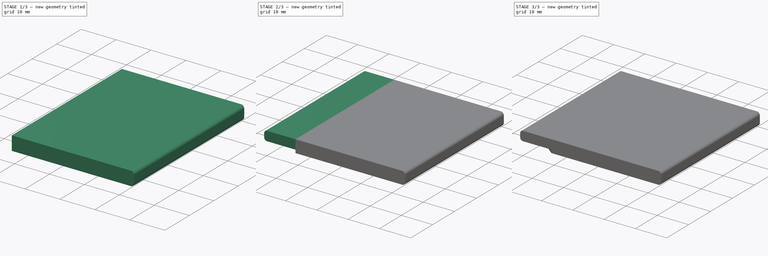
[diagram: build sequence overview — one tinted view per stage of 3, left to right]
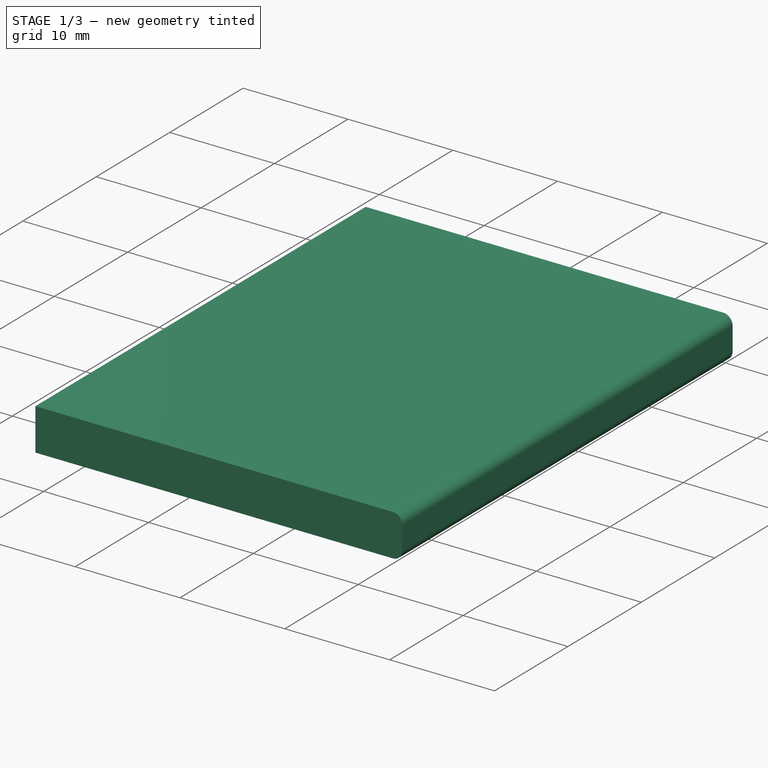
[diagram: stage 1 of 3 — iso view after this stage's code; geometry added in this stage tinted green]
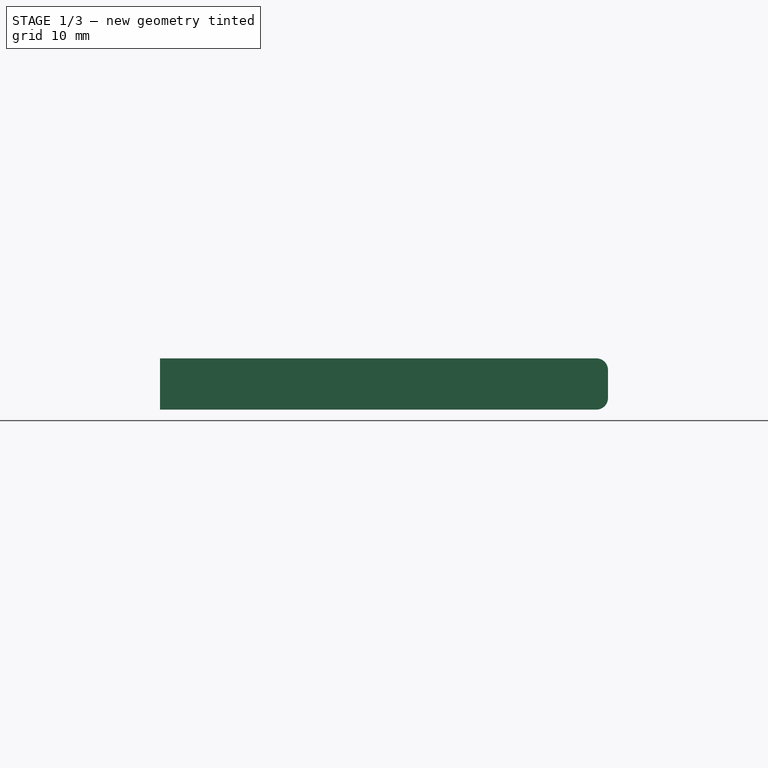
[diagram: stage 1 of 3 — front view after this stage's code; geometry added in this stage tinted green]
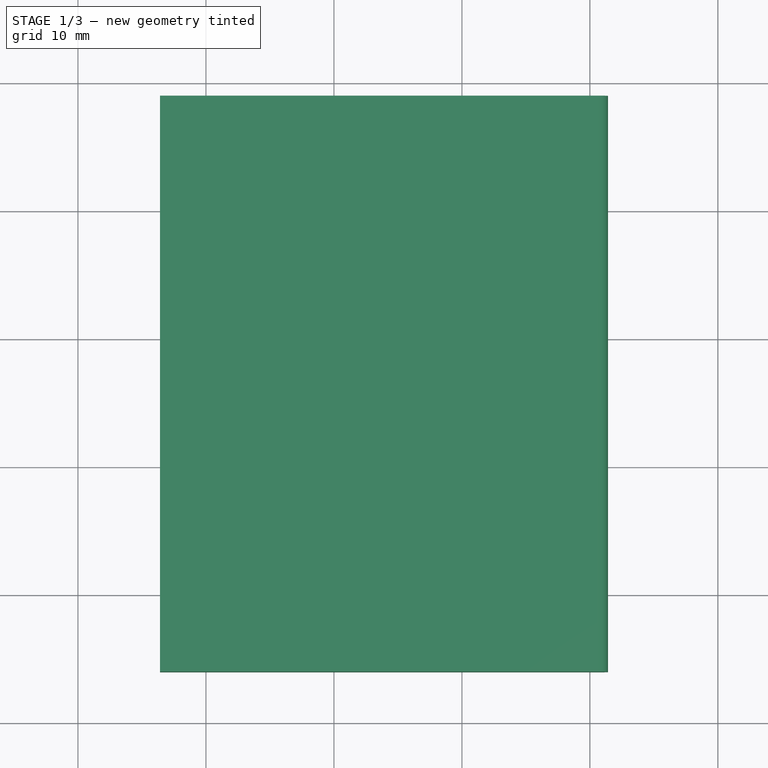
[diagram: stage 1 of 3 — top view after this stage's code; geometry added in this stage tinted green]
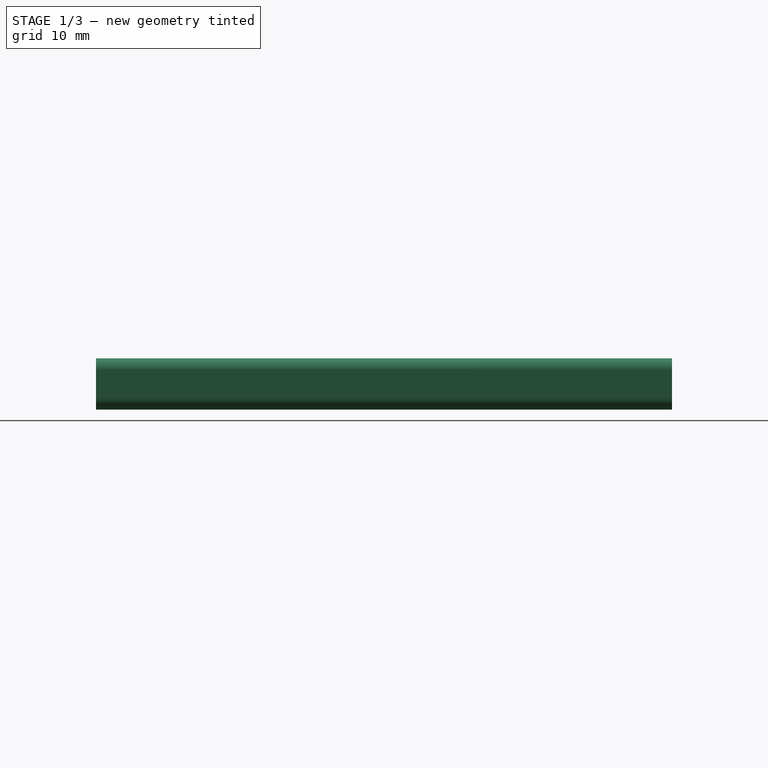
[diagram: stage 1 of 3 — right view after this stage's code; geometry added in this stage tinted green]
FCSTD DOCUMENT  (FreeCAD 1.0R39319 (Git))
Label: door_handle
License: All rights reserved
LicenseURL: http://en.wikipedia.org/wiki/All_rights_reserved
objects: Sketcher::SketchObject×3, Part::Extrusion×3, Part::Fillet×2, Part::MultiFuse×1, Part::Feature×1
note: 13 computed .brp shape members not serialized (recipe doc carries the construction recipe); baked Part::Feature solids carry a one-line shape summary decoded from their .brp

FEATURE [Sketcher::SketchObject] Sketch
  ArcFitTolerance = 0
  FullyConstrained = false
  MakeInternals = false
  sketch-geometry (5):
    g0: LineSegment StartX=-13.5883 StartY=18.9901 StartZ=0 EndX=21.4117 EndY=18.9901 EndZ=0
    g1: LineSegment StartX=21.4117 StartY=18.9901 StartZ=0 EndX=21.4117 EndY=-26.0099 EndZ=0
    g2: LineSegment StartX=21.4117 StartY=-26.0099 StartZ=0 EndX=-13.5883 EndY=-26.0099 EndZ=0
    g3: LineSegment StartX=-13.5883 StartY=-26.0099 StartZ=0 EndX=-13.5883 EndY=18.9901 EndZ=0
    g4: GeomPoint [constr] X=-8.5883 Y=-26.0099 Z=0
  constraints (12):
    c: Coincident(g0,g1)
    c: Coincident(g1,g2)
    c: Coincident(g2,g3)
    c: Coincident(g3,g0)
    c: Horizontal(g0)
    c: Horizontal(g2)
    c: Vertical(g1)
    c: Vertical(g3)
    c: DistanceY(g1,g1) = 45
    c: DistanceX(g0,g0) = 35
    c: PointOnObject(g4,g2)
    c: DistanceX(g2,g4) = 5
FEATURE [Part::Extrusion] Extrude
  Base = -> Sketch
  Dir = (0,0,1)
  DirMode = 2
  FaceMakerClass = Part::FaceMakerBullseye
  FaceMakerMode = 3
  LengthFwd = 4
  LengthRev = 0
  Solid = true
  Symmetric = false
FEATURE [Part::Fillet] Fillet001
  Base = -> Extrude
  EdgeLinks = -> Extrude [Edge6,Edge7]
  Edges = 2 edges r=0.9: [Edge6,Edge7]
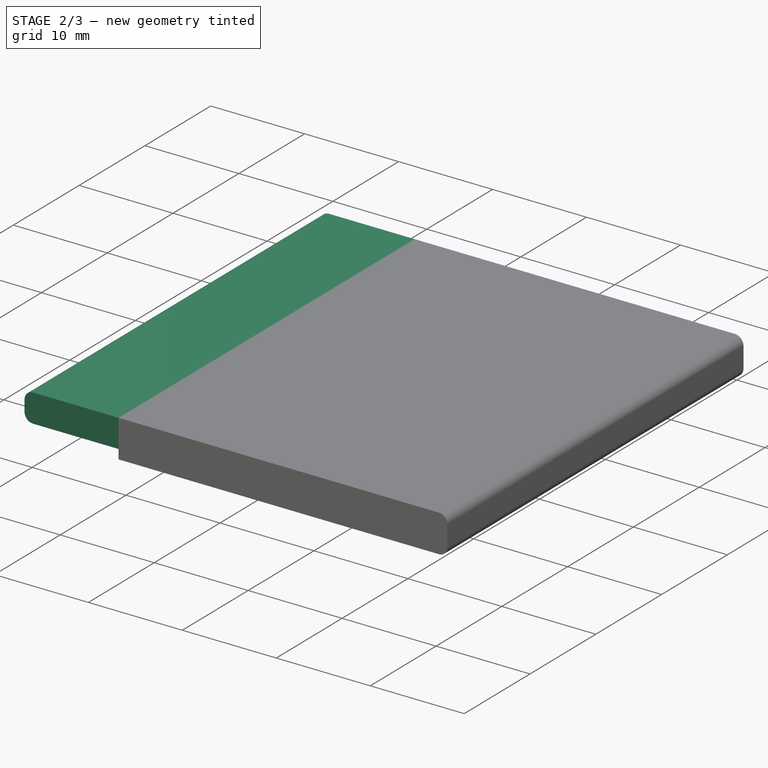
[diagram: stage 2 of 3 — iso view after this stage's code; geometry added in this stage tinted green]
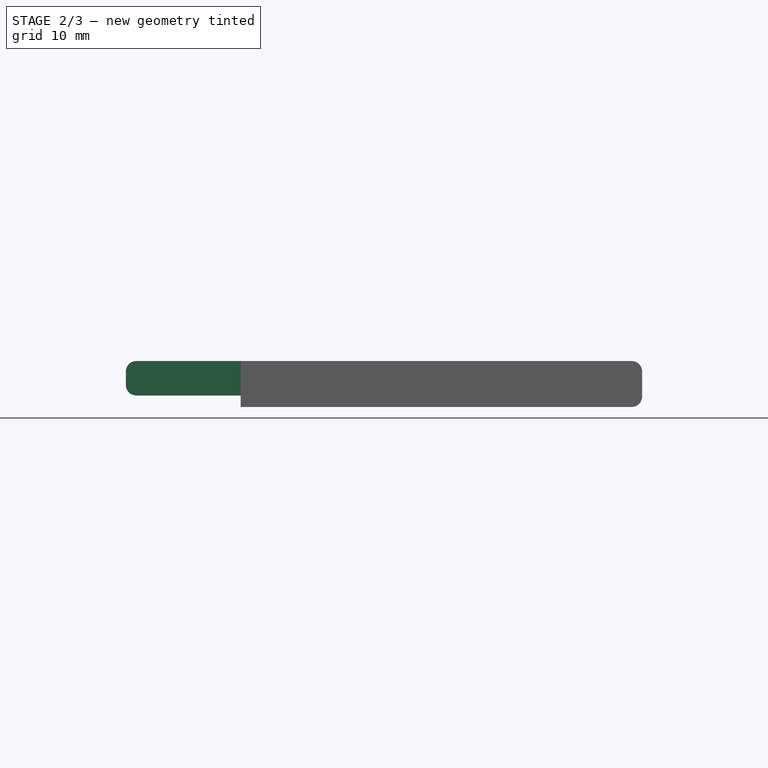
[diagram: stage 2 of 3 — front view after this stage's code; geometry added in this stage tinted green]
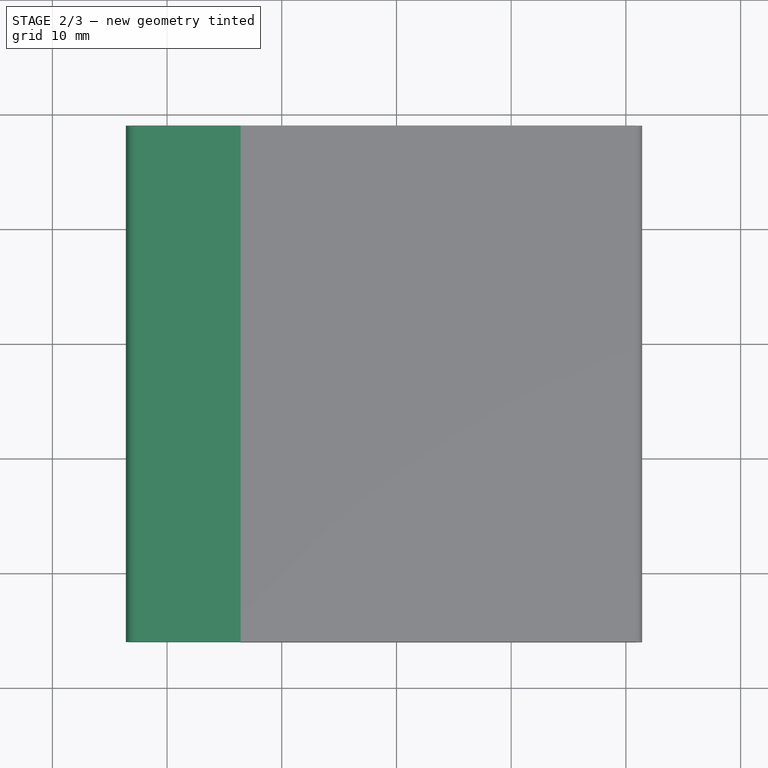
[diagram: stage 2 of 3 — top view after this stage's code; geometry added in this stage tinted green]
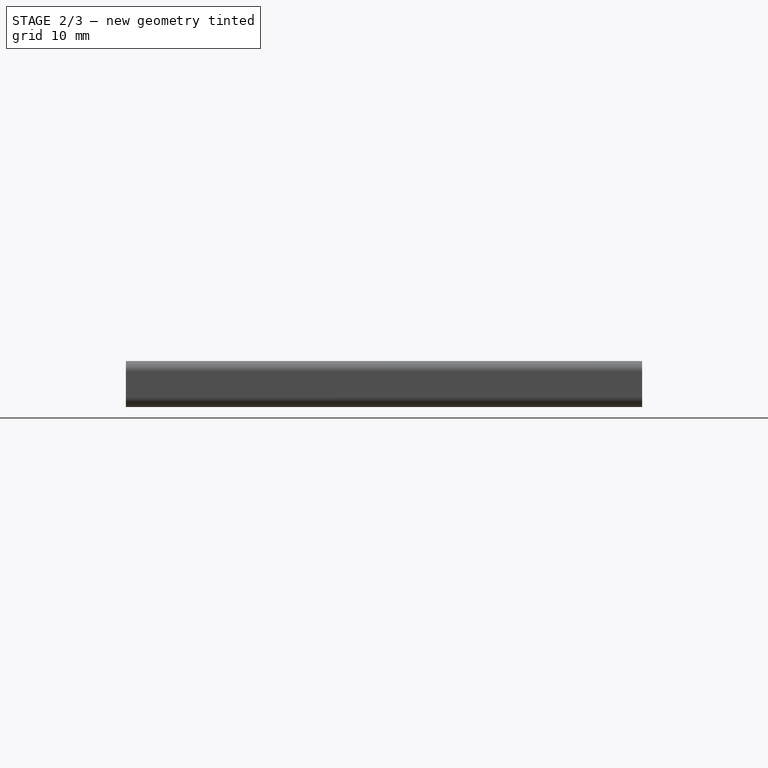
[diagram: stage 2 of 3 — right view after this stage's code; geometry added in this stage tinted green]
FEATURE [Sketcher::SketchObject] Sketch001
  ArcFitTolerance = 0
  AttachmentSupport = -> [Extrude]
  FullyConstrained = false
  MakeInternals = false
  MapMode = 1
  Placement = pos=(-13.5883,18.9901,4) rot=(0,0,1;0rad)
  sketch-geometry (5):
    g0: LineSegment StartX=0 StartY=0 StartZ=0 EndX=-10 EndY=0 EndZ=0
    g1: LineSegment StartX=-10 StartY=0 StartZ=0 EndX=-10 EndY=-45 EndZ=0
    g2: LineSegment StartX=-10 StartY=-45 StartZ=0 EndX=0 EndY=-45 EndZ=0
    g3: LineSegment StartX=0 StartY=-45 StartZ=0 EndX=0 EndY=0 EndZ=0
    g4: GeomPoint [constr] X=-5 Y=-45 Z=0
  constraints (12):
    c: Coincident(g0,g1)
    c: Coincident(g1,g2)
    c: Coincident(g2,g3)
    c: Coincident(g3,g0)
    c: Horizontal(g0)
    c: Horizontal(g2)
    c: Vertical(g1)
    c: Vertical(g3)
    c: DistanceY(g1,g1) = 45
    c: DistanceX(g0,g0) = 10
    c: PointOnObject(g4,g2)
    c: DistanceX(g4,g2) = 5
FEATURE [Part::Extrusion] Extrude001
  Base = -> Sketch001
  Dir = (0,0,1)
  DirMode = 2
  FaceMakerClass = Part::FaceMakerBullseye
  FaceMakerMode = 3
  LengthFwd = 3
  LengthRev = 0
  Solid = true
  Symmetric = false
FEATURE [Part::Fillet] Fillet
  Base = -> Extrude001
  EdgeLinks = -> Extrude001 [Edge6,Edge7]
  Edges = 2 edges r=0.9: [Edge6,Edge7]
  Placement = pos=(0,0,-3) rot=(0,0,1;0rad)
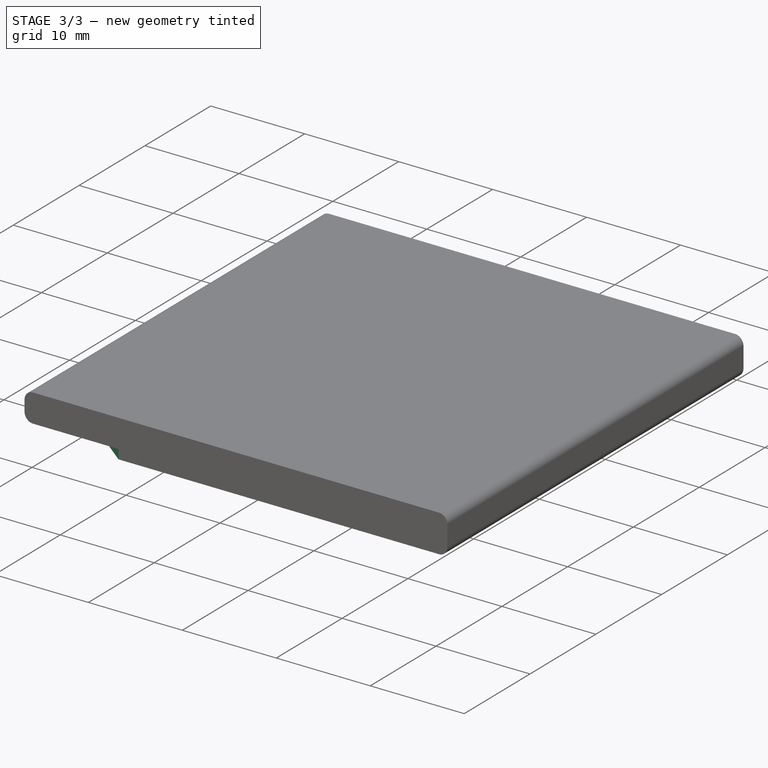
[diagram: stage 3 of 3 — iso view after this stage's code; geometry added in this stage tinted green]
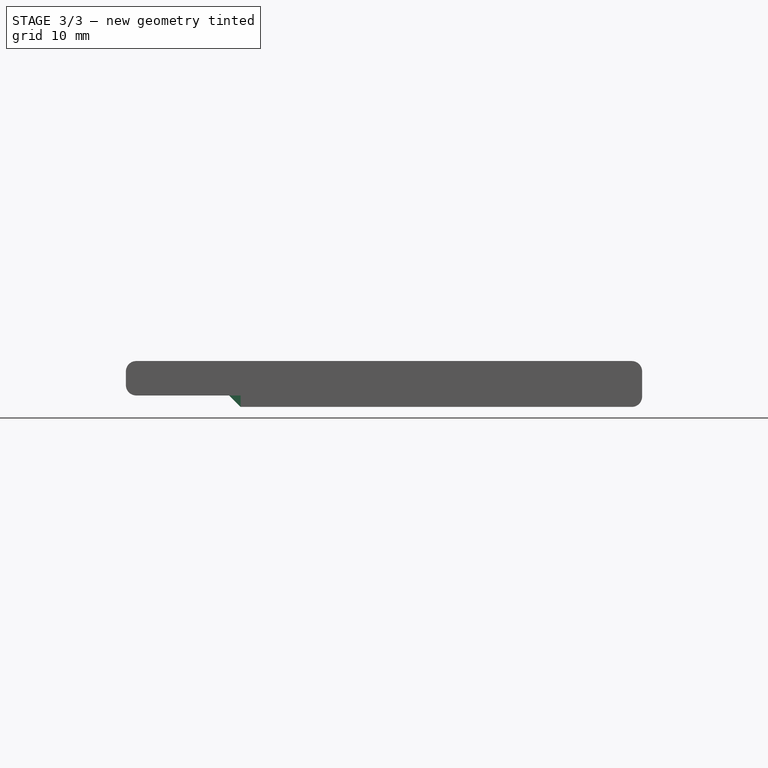
[diagram: stage 3 of 3 — front view after this stage's code; geometry added in this stage tinted green]
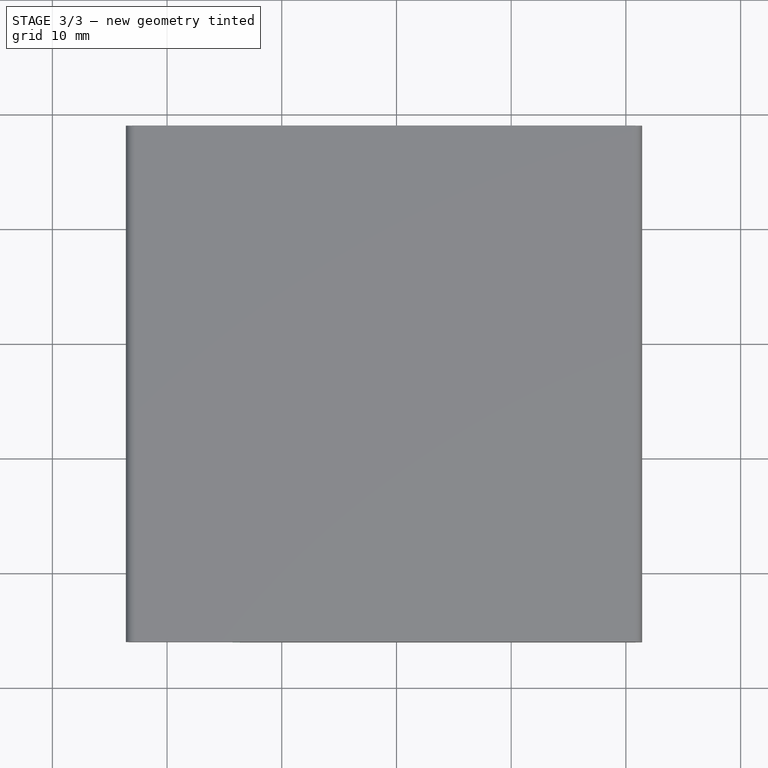
[diagram: stage 3 of 3 — top view after this stage's code; geometry added in this stage tinted green]
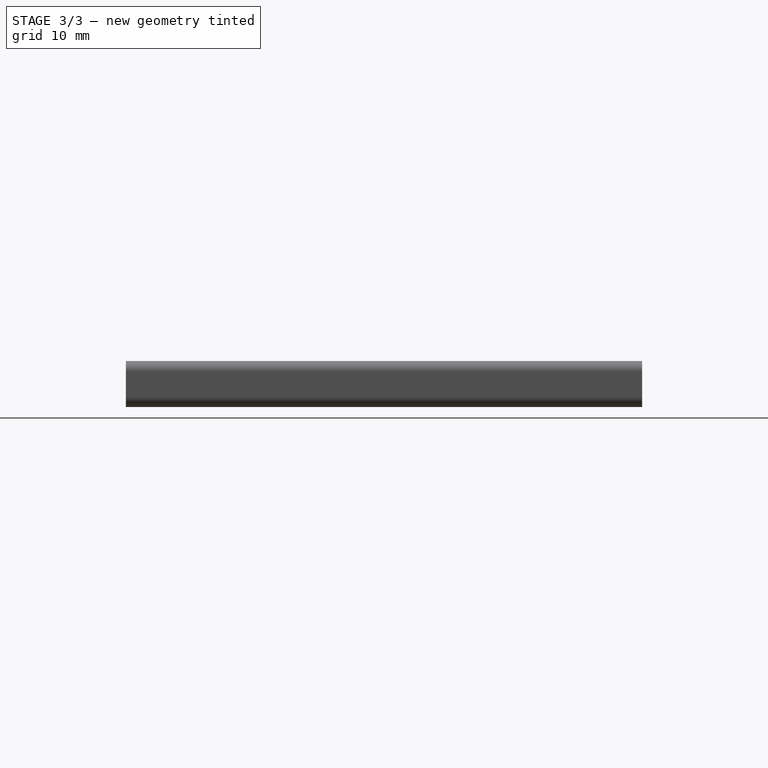
[diagram: stage 3 of 3 — right view after this stage's code; geometry added in this stage tinted green]
FEATURE [Sketcher::SketchObject] Sketch002
  ArcFitTolerance = 0
  AttachmentSupport = -> [Extrude]
  FullyConstrained = false
  MakeInternals = false
  MapMode = 1
  Placement = pos=(-13.5883,-26.0099,4) rot=(1,0,0;1.5708rad)
  sketch-geometry (4):
    g0: LineSegment StartX=2 StartY=0 StartZ=0 EndX=-0.002276 EndY=2.00016 EndZ=0
    g1: LineSegment StartX=-0.002276 StartY=2.00016 StartZ=0 EndX=-2 EndY=0 EndZ=0
    g2: LineSegment StartX=-2 StartY=0 StartZ=0 EndX=-0.000274 EndY=-2.00179 EndZ=0
    g3: LineSegment StartX=-0.000274 StartY=-2.00179 StartZ=0 EndX=2 EndY=0 EndZ=0
  constraints (8):
    c: Coincident(g3,g0)
    c: Coincident(g0,g1)
    c: Coincident(g2,g1)
    c: Coincident(g3,g2)
    c: DistanceX(g1,g-1) = 2
    c: DistanceX(g-1,g0) = 2
    c: PointOnObject(g0,g-1)
    c: PointOnObject(g1,g-1)
FEATURE [Part::Extrusion] Extrude002
  Base = -> Sketch002
  Dir = (0,-1,2e-16)
  DirMode = 2
  FaceMakerClass = Part::FaceMakerBullseye
  FaceMakerMode = 3
  LengthFwd = 45
  LengthRev = 0
  Placement = pos=(0,0,-2) rot=(0,0,1;0rad)
  Reversed = true
  Solid = true
  Symmetric = false
FEATURE [Part::MultiFuse] Fusion
  Shapes = -> [Extrude002,Fillet,Fillet001]
FEATURE [Part::Feature] Fusion001
  shape: bbox 45 x 45 x 4.002 mm, 29 faces (baked)
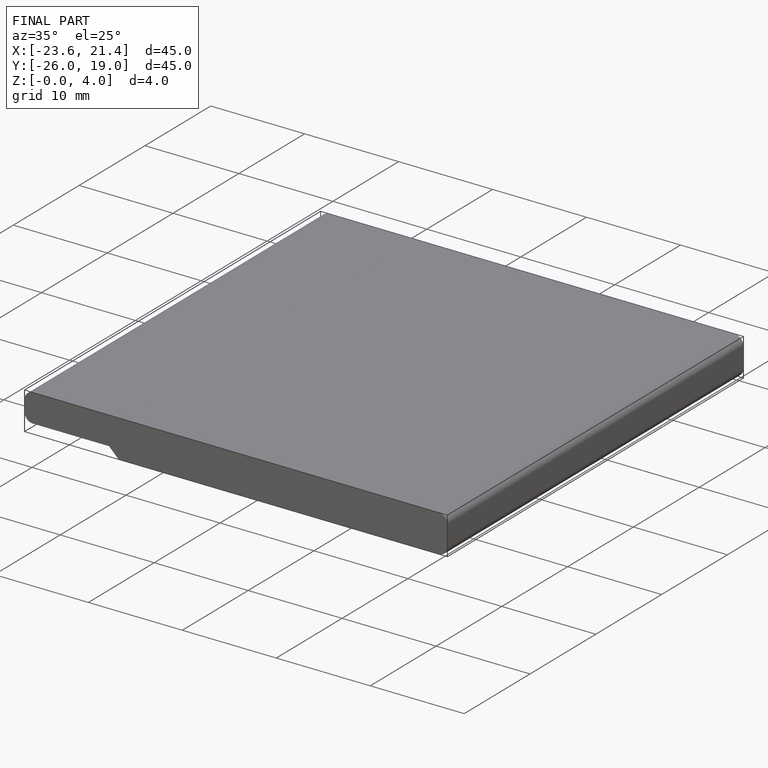
[diagram: finished part — iso view with bounding-box wireframe]
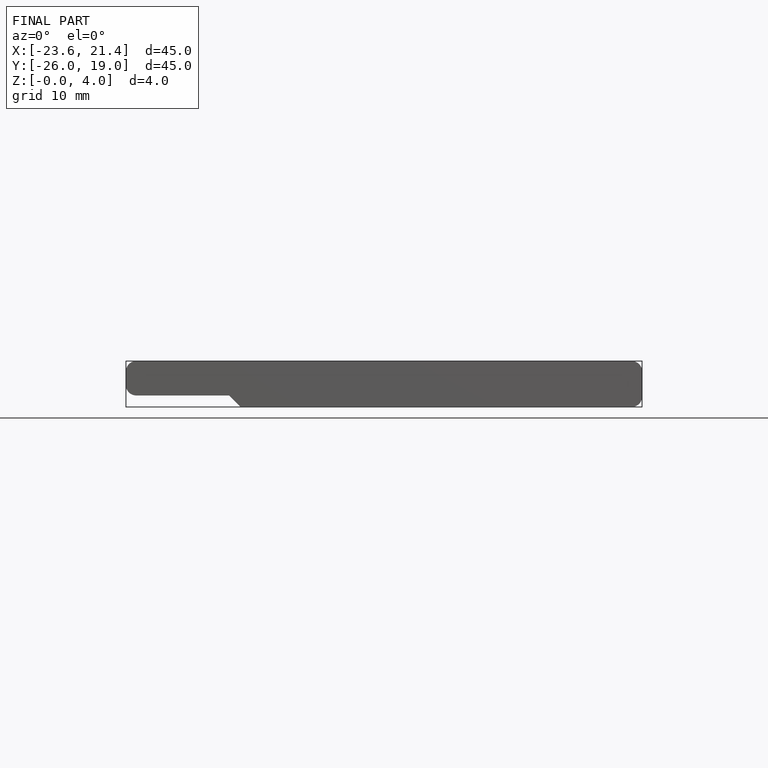
[diagram: finished part — front view with bounding-box wireframe]
